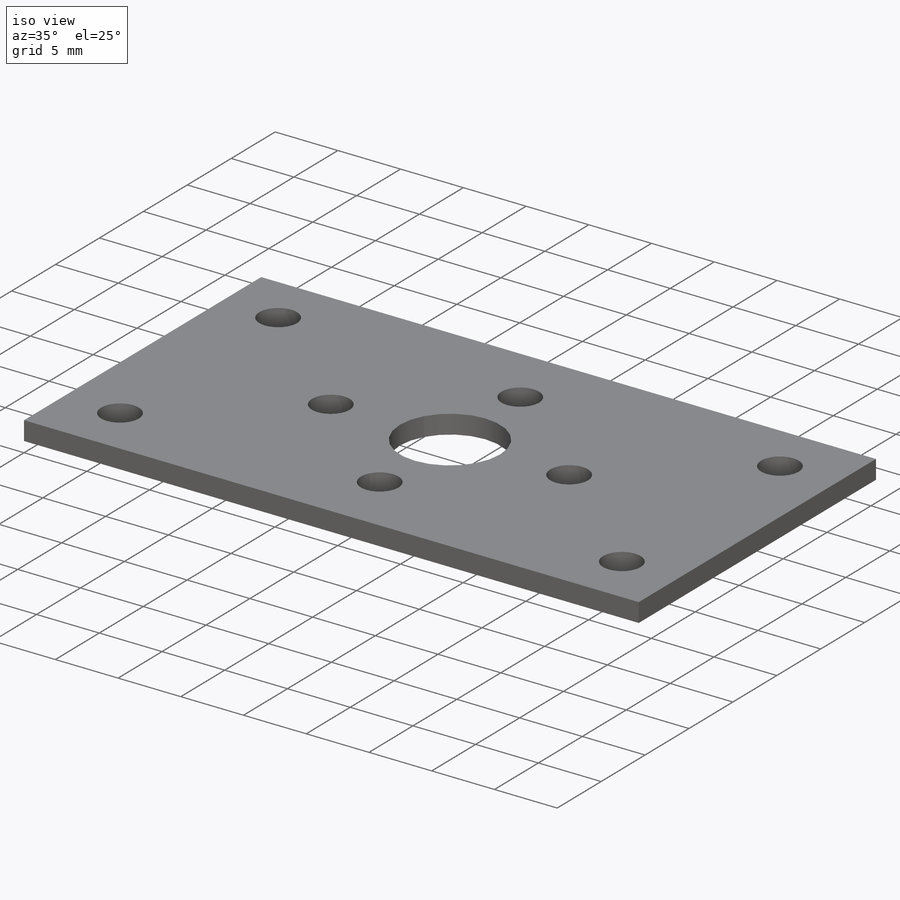
[diagram: iso view]
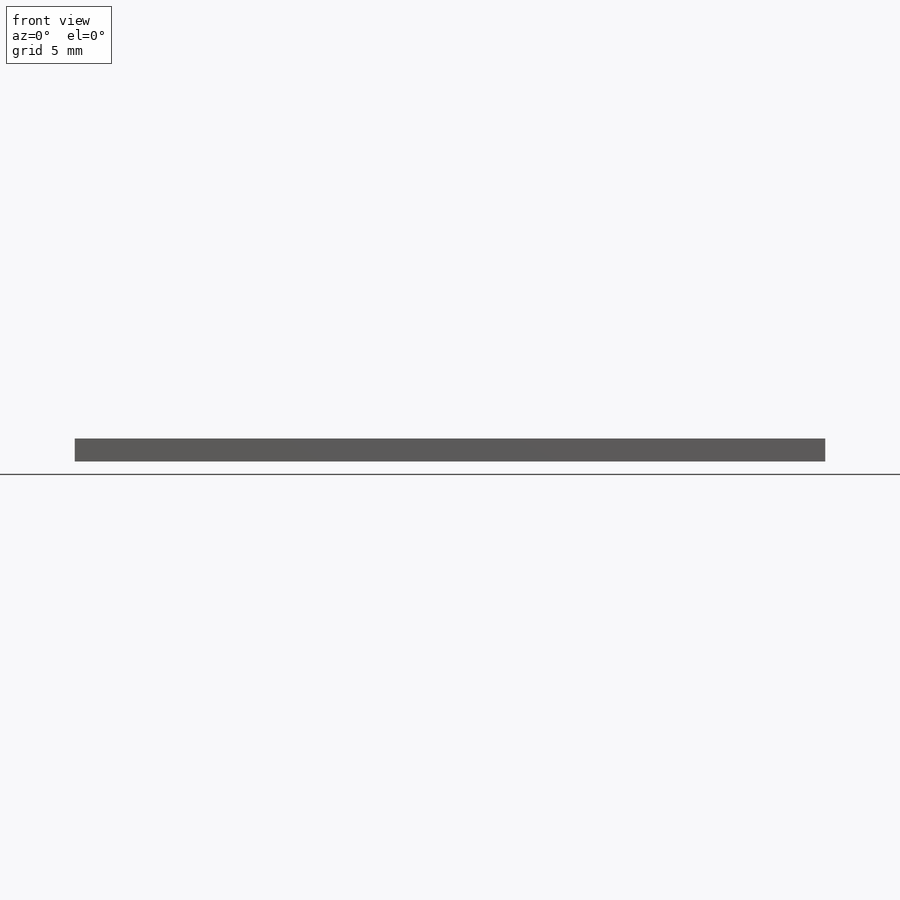
[diagram: front view]
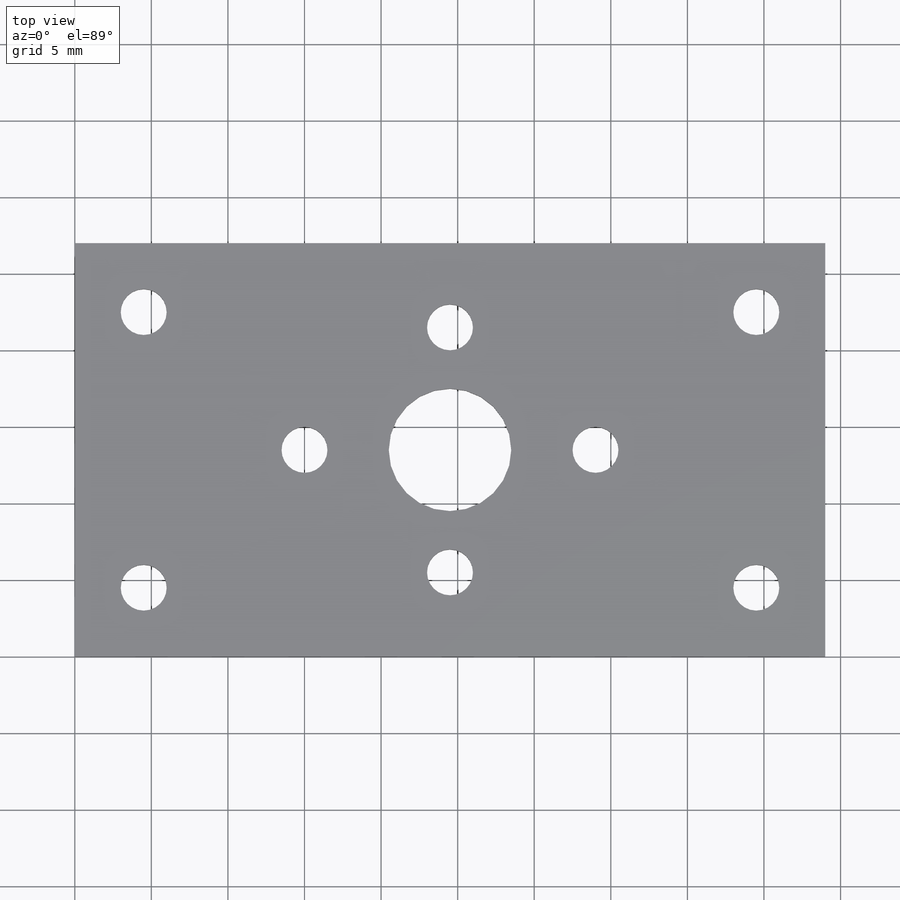
[diagram: top view]
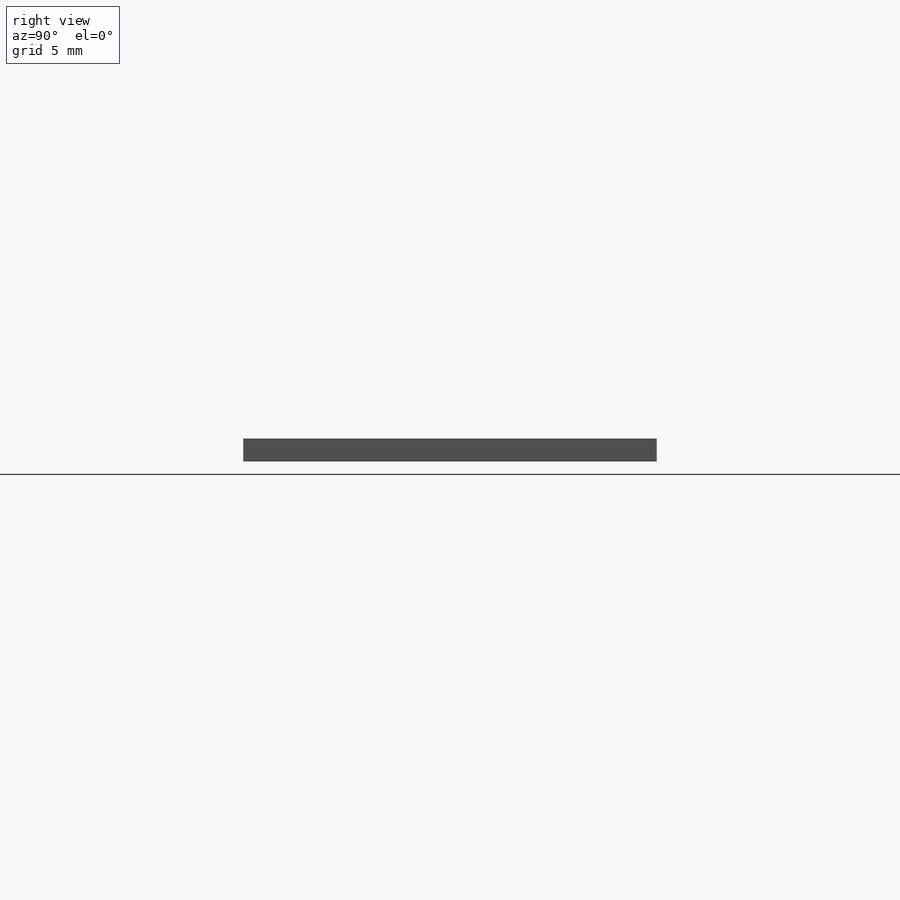
[diagram: right view]
SOLIDWORKS PART (.sldprt)
format: sldprt  version: not decoded by parser v0  size: 201,728 bytes
history: native  units: mm
features: sketch x3, cut_extrude x2, material x1, extrude x1 (+13 scaffold rows collapsed)
feature tree (20):
  scaffold x13  (default folders/planes/origin — collapsed)
  material  "Material <not specified>"
  sketch  "Sketch1"  dims[D1=49.0mm D2=27.0mm]
  extrude  "Boss-Extrude1"  Depth=1.5mm
  sketch  "Sketch2"  dims[c1.D1=~1.422956mm c1.D3=~1.441057mm c2.D1=4.5mm c2.D2=4.5mm c2.D3=4.5mm c2.D4=4.5mm c2.D5=18.0mm c2.D6=4.5mm c2.D7=4.5mm c2.D8=4.5mm c2.D9=4.5mm]
  cut_extrude  "Cut-Extrude1"  Depth=10mm
  sketch  "Sketch3"  dims[c1.D1=~2.322254mm c1.D3=~1.493077mm c1.D11=~1.759872mm c2.D1=13.5mm c2.D2=15.0mm c2.D3=19.0mm c2.D4=16.0mm c2.D5=5.5mm c2.D6=8.0mm c2.D7=9.5mm c2.D8=9.5mm c2.D9=15.0mm c2.D10=5.5mm c2.D11=24.5mm c2.D12=13.5mm c2.D13=24.5mm]
  cut_extrude  "Cut-Extrude2"  Depth=10mm
decode coverage: 6 of 6 modeling features carry decoded parameters
note: ~ marks probable driven/reference dimensions
note: suppression state not decoded; provenance and decode notes live in map.json
